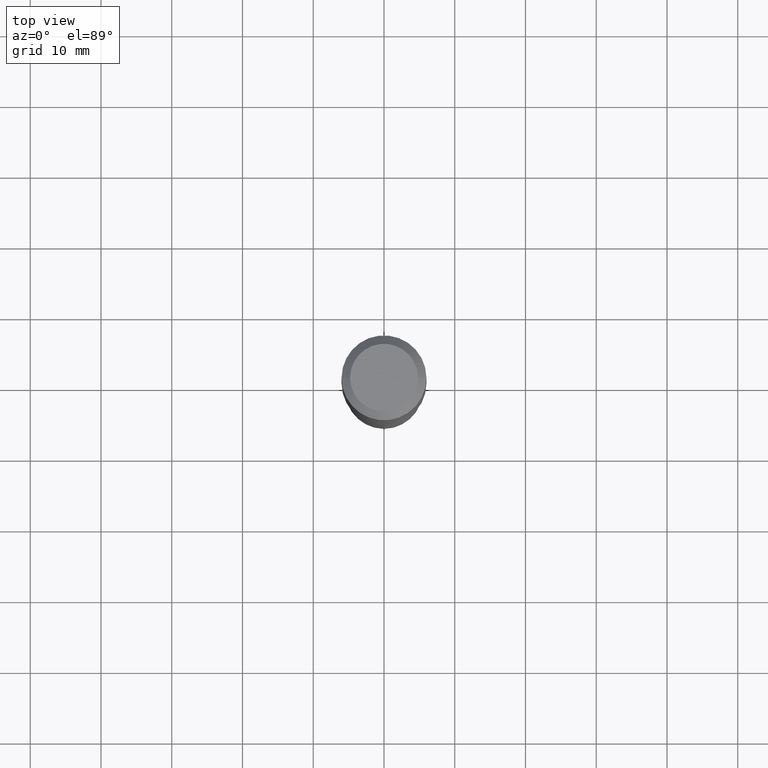
[diagram: clean part render]
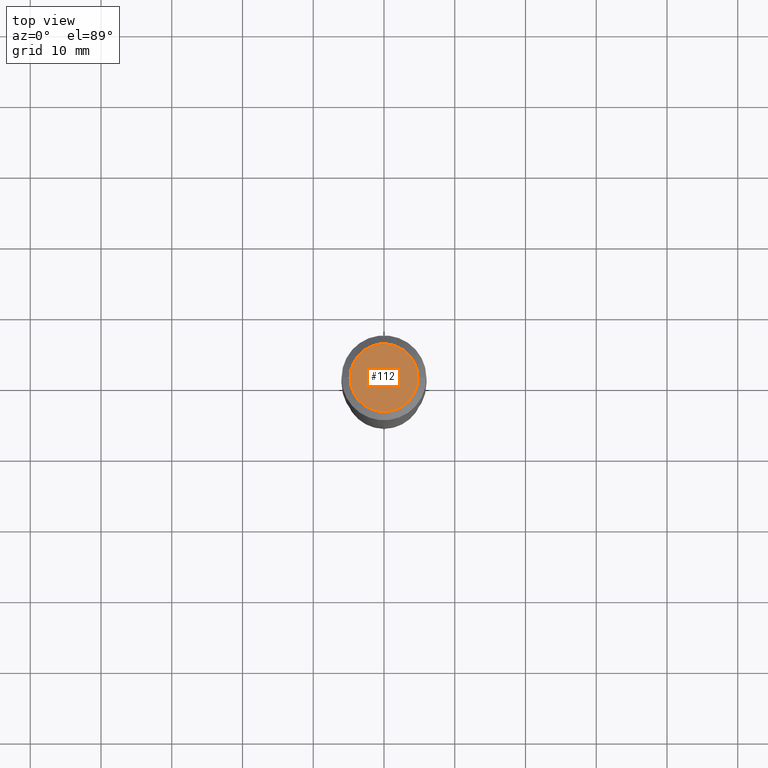
[diagram: same view with one face highlighted and labeled with its STEP entity id]
A machine part, top view. The second image highlights one B-rep face of the part: STEP entity #112.
In plain terms, the highlighted planar face has unit normal (0, -0, -1).
Its self-contained STEP definition (entity closure, byte-faithful):
#20 = CIRCLE ( 'NONE', #182, 0.1889600000000000168 ) ;
#42 = AXIS2_PLACEMENT_3D ( 'NONE', #160, #225, #152 ) ;
#65 = VERTEX_POINT ( 'NONE', #91 ) ;
#91 = CARTESIAN_POINT ( 'NONE',  ( 0.1889600000000000168, -1.540873453589747738E-15, 3.855188123725863225E-18 ) ) ;
#112 = ADVANCED_FACE ( 'NONE', ( #439 ), #173, .F. ) ;
#137 = ORIENTED_EDGE ( 'NONE', *, *, #221, .T. ) ;
#152 = DIRECTION ( 'NONE',  ( -1.000000000000000000, 6.982962677686265922E-15, -4.876176775795935793E-29 ) ) ;
#160 = CARTESIAN_POINT ( 'NONE',  ( -4.713871149261273121E-47, 6.730158695841826722E-33, 1.927594061857931128E-18 ) ) ;
#173 = PLANE ( 'NONE',  #42 ) ;
#182 = AXIS2_PLACEMENT_3D ( 'NONE', #372, #296, #386 ) ;
#221 = EDGE_CURVE ( 'NONE', #402, #65, #20, .T. ) ;
#223 = CARTESIAN_POINT ( 'NONE',  ( -9.427742298522546243E-47, 1.346031739168365344E-32, 3.855188123715862256E-18 ) ) ;
#225 = DIRECTION ( 'NONE',  ( 2.438088387897960049E-29, -3.491481338843145188E-15, -1.000000000000000000 ) ) ;
#252 = CIRCLE ( 'NONE', #347, 0.1889600000000000168 ) ;
#282 = CARTESIAN_POINT ( 'NONE',  ( -0.1889600000000000168, 1.401969416799070942E-15, 3.855188123706346622E-18 ) ) ;
#296 = DIRECTION ( 'NONE',  ( -2.445468806185136597E-29, 3.491481338843145583E-15, 1.000000000000000000 ) ) ;
#345 = DIRECTION ( 'NONE',  ( 1.000000000000000000, -6.982962677686266711E-15, 4.876185090822587894E-29 ) ) ;
#347 = AXIS2_PLACEMENT_3D ( 'NONE', #223, #352, #345 ) ;
#352 = DIRECTION ( 'NONE',  ( -2.445468806185136597E-29, 3.491481338843145583E-15, 1.000000000000000000 ) ) ;
#361 = EDGE_LOOP ( 'NONE', ( #137, #362 ) ) ;
#362 = ORIENTED_EDGE ( 'NONE', *, *, #478, .T. ) ;
#372 = CARTESIAN_POINT ( 'NONE',  ( -9.427742298522546243E-47, 1.346031739168365344E-32, 3.855188123715862256E-18 ) ) ;
#386 = DIRECTION ( 'NONE',  ( 1.000000000000000000, -6.982962677686266711E-15, 4.876185090822587894E-29 ) ) ;
#402 = VERTEX_POINT ( 'NONE', #282 ) ;
#439 = FACE_OUTER_BOUND ( 'NONE', #361, .T. ) ;
#478 = EDGE_CURVE ( 'NONE', #65, #402, #252, .T. ) ;